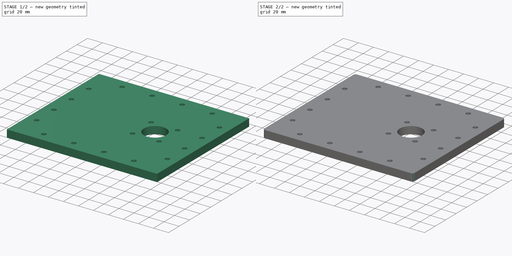
[diagram: build sequence overview — one tinted view per stage of 2, left to right]
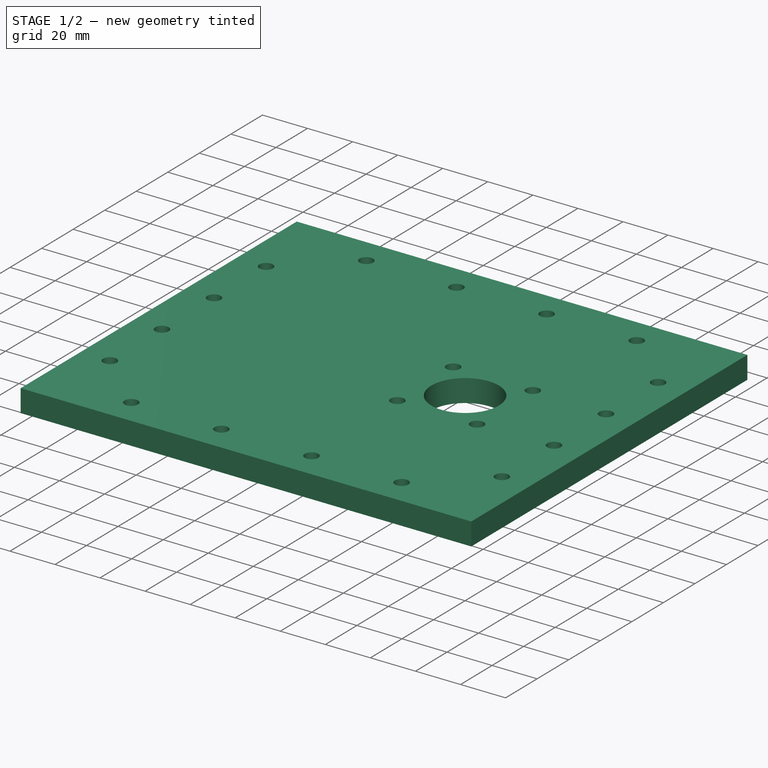
[diagram: stage 1 of 2 — iso view after this stage's code; geometry added in this stage tinted green]
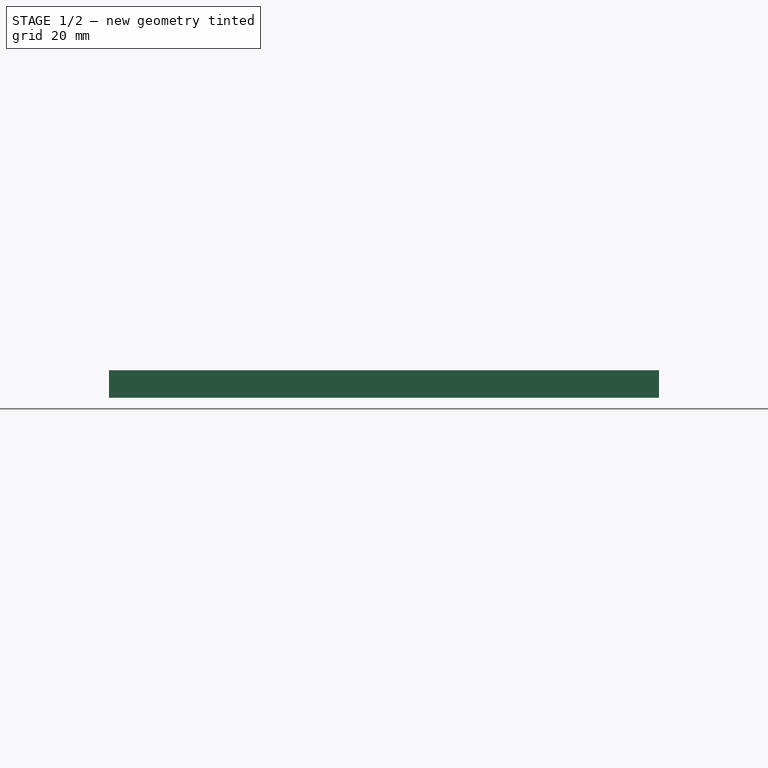
[diagram: stage 1 of 2 — front view after this stage's code; geometry added in this stage tinted green]
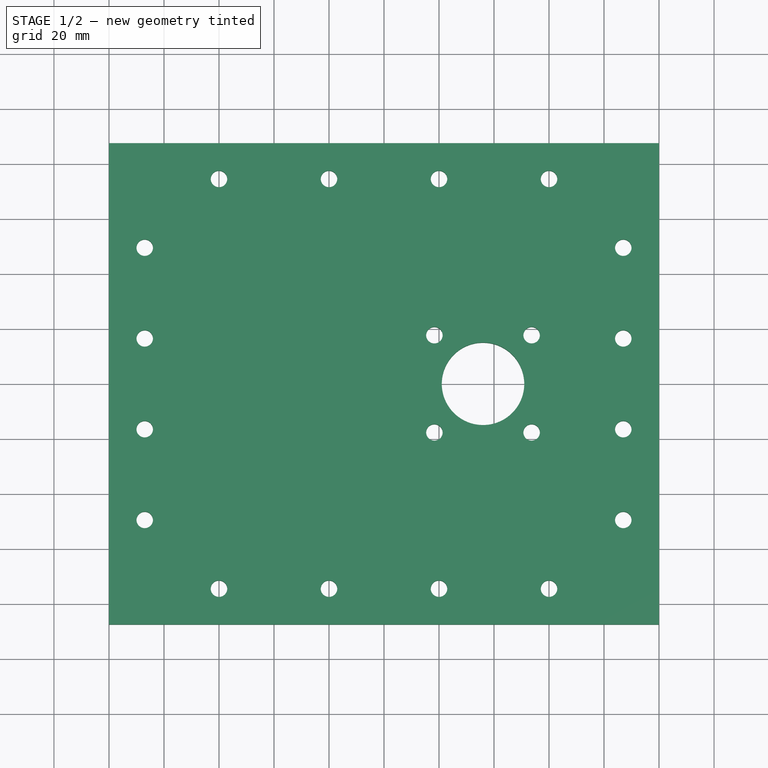
[diagram: stage 1 of 2 — top view after this stage's code; geometry added in this stage tinted green]
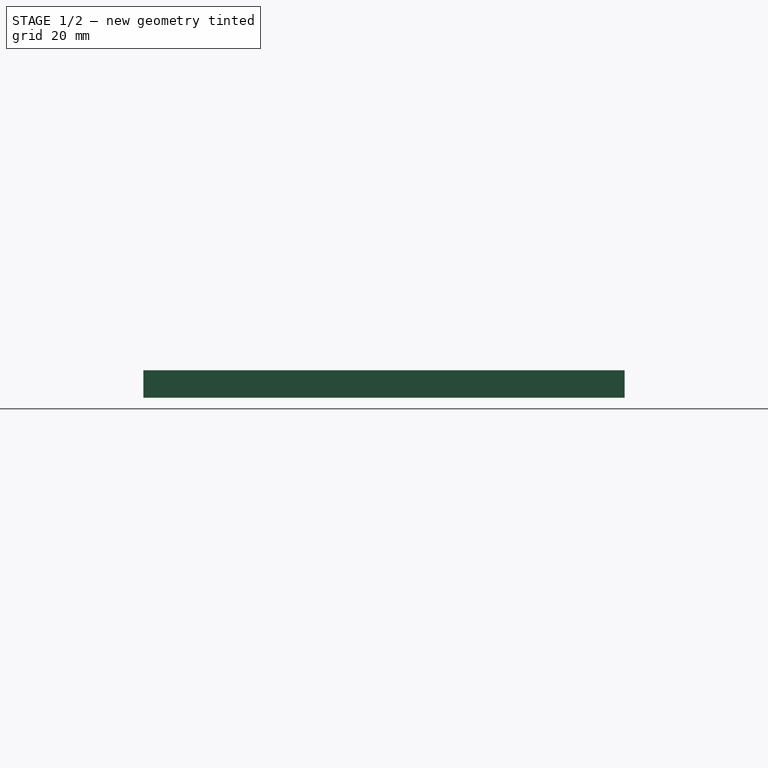
[diagram: stage 1 of 2 — right view after this stage's code; geometry added in this stage tinted green]
FCSTD DOCUMENT  (FreeCAD 0.19R24276 (Git))
Label: bldc_holder_p1_175x200x10_otv_d30_d6
License: All rights reserved
LicenseURL: http://en.wikipedia.org/wiki/All_rights_reserved
objects: Sketcher::SketchObject×1, PartDesign::Pad×1, PartDesign::Fillet×1, PartDesign::Body×1
note: 6 computed .brp shape members not serialized (recipe doc carries the construction recipe); baked Part::Feature solids carry a one-line shape summary decoded from their .brp

FEATURE [Sketcher::SketchObject] Sketch
  FullyConstrained = false
  MapMode = 5
  Support = -> [XY_Plane]
  sketch-geometry (50):
    g0: LineSegment StartX=0 StartY=0 StartZ=0 EndX=200 EndY=0 EndZ=0
    g1: LineSegment StartX=200 StartY=0 StartZ=0 EndX=200 EndY=200 EndZ=0
    g2: LineSegment StartX=200 StartY=200 StartZ=0 EndX=0 EndY=200 EndZ=0
    g3: Circle CenterX=136 CenterY=100 CenterZ=0 NormalX=0 NormalY=0 NormalZ=1 AngleXU=0 Radius=15
    g4: Circle CenterX=136 CenterY=100 CenterZ=0 NormalX=0 NormalY=0 NormalZ=1 AngleXU=0 Radius=62.5
    g5: LineSegment StartX=153.678 StartY=117.678 StartZ=0 EndX=118.322 EndY=117.678 EndZ=0
    g6: LineSegment StartX=118.322 StartY=117.678 StartZ=0 EndX=118.322 EndY=82.3223 EndZ=0
    g7: LineSegment StartX=118.322 StartY=82.3223 StartZ=0 EndX=153.678 EndY=82.3223 EndZ=0
    g8: LineSegment StartX=153.678 StartY=82.3223 StartZ=0 EndX=153.678 EndY=117.678 EndZ=0
    g9: Circle CenterX=136 CenterY=100 CenterZ=0 NormalX=0 NormalY=0 NormalZ=1 AngleXU=0 Radius=25
    g10: Circle CenterX=118.322 CenterY=117.678 CenterZ=0 NormalX=0 NormalY=0 NormalZ=1 AngleXU=0 Radius=3
    g11: Circle CenterX=153.678 CenterY=117.678 CenterZ=0 NormalX=0 NormalY=0 NormalZ=1 AngleXU=0 Radius=3
    g12: Circle CenterX=118.322 CenterY=82.3223 CenterZ=0 NormalX=0 NormalY=0 NormalZ=1 AngleXU=0 Radius=3
    g13: Circle CenterX=153.678 CenterY=82.3223 CenterZ=0 NormalX=0 NormalY=0 NormalZ=1 AngleXU=0 Radius=3
    g14: Circle CenterX=40 CenterY=25.5 CenterZ=0 NormalX=0 NormalY=0 NormalZ=1 AngleXU=0 Radius=3
    g15: Circle CenterX=160 CenterY=25.5 CenterZ=0 NormalX=0 NormalY=0 NormalZ=1 AngleXU=0 Radius=3
    g16: Circle CenterX=80 CenterY=25.5 CenterZ=0 NormalX=0 NormalY=0 NormalZ=1 AngleXU=0 Radius=3
    g17: Circle CenterX=120 CenterY=25.5 CenterZ=0 NormalX=0 NormalY=0 NormalZ=1 AngleXU=0 Radius=3
    g18: LineSegment StartX=136 StartY=100 StartZ=0 EndX=13 EndY=100 EndZ=0
    g19: Circle CenterX=40 CenterY=174.5 CenterZ=0 NormalX=0 NormalY=0 NormalZ=1 AngleXU=0 Radius=3
    g20: Circle CenterX=80 CenterY=174.5 CenterZ=0 NormalX=0 NormalY=0 NormalZ=1 AngleXU=0 Radius=3
    g21: Circle CenterX=120 CenterY=174.5 CenterZ=0 NormalX=0 NormalY=0 NormalZ=1 AngleXU=0 Radius=3
    g22: Circle CenterX=160 CenterY=174.5 CenterZ=0 NormalX=0 NormalY=0 NormalZ=1 AngleXU=0 Radius=3
    g23: Circle CenterX=13 CenterY=149.5 CenterZ=0 NormalX=0 NormalY=0 NormalZ=1 AngleXU=0 Radius=3
    g24: Circle CenterX=13 CenterY=116.5 CenterZ=0 NormalX=0 NormalY=0 NormalZ=1 AngleXU=0 Radius=3
    g25: Circle CenterX=13 CenterY=83.5 CenterZ=0 NormalX=0 NormalY=0 NormalZ=1 AngleXU=0 Radius=3
    g26: Circle CenterX=13 CenterY=50.5 CenterZ=0 NormalX=0 NormalY=0 NormalZ=1 AngleXU=0 Radius=3
    g27: LineSegment StartX=13 StartY=100 StartZ=0 EndX=13 EndY=145.429 EndZ=0
    g28: Circle CenterX=187 CenterY=149.5 CenterZ=0 NormalX=0 NormalY=0 NormalZ=1 AngleXU=0 Radius=3
    g29: Circle CenterX=187 CenterY=116.5 CenterZ=0 NormalX=0 NormalY=0 NormalZ=1 AngleXU=0 Radius=3
    g30: Circle CenterX=187 CenterY=83.5 CenterZ=0 NormalX=0 NormalY=0 NormalZ=1 AngleXU=0 Radius=3
    g31: Circle CenterX=187 CenterY=50.5 CenterZ=0 NormalX=0 NormalY=0 NormalZ=1 AngleXU=0 Radius=3
    g32: LineSegment StartX=0 StartY=187.5 StartZ=0 EndX=200 EndY=187.5 EndZ=0
    g33: LineSegment StartX=200 StartY=187.5 StartZ=0 EndX=200 EndY=12.5 EndZ=0
    g34: LineSegment StartX=200 StartY=12.5 StartZ=0 EndX=0 EndY=12.5 EndZ=0
    g35: LineSegment StartX=0 StartY=12.5 StartZ=0 EndX=200 EndY=12.5 EndZ=0
    g36: LineSegment StartX=200 StartY=12.5 StartZ=0 EndX=200 EndY=187.5 EndZ=0
    g37: LineSegment StartX=200 StartY=187.5 StartZ=0 EndX=0 EndY=187.5 EndZ=0
    g38: LineSegment StartX=0 StartY=12.5 StartZ=0 EndX=0 EndY=187.5 EndZ=0
    g39: Circle CenterX=136 CenterY=100 CenterZ=0 NormalX=0 NormalY=0 NormalZ=1 AngleXU=0 Radius=60
    g40: LineSegment StartX=193.924 StartY=177.5 StartZ=0 EndX=6.95574 EndY=177.5 EndZ=0
    g41: LineSegment StartX=6.95574 StartY=177.5 StartZ=0 EndX=6.95574 EndY=187.5 EndZ=0
    g42: LineSegment StartX=6.95574 StartY=187.5 StartZ=0 EndX=193.924 EndY=187.5 EndZ=0
    g43: LineSegment StartX=193.924 StartY=187.5 StartZ=0 EndX=193.924 EndY=177.5 EndZ=0
    g44: LineSegment StartX=191.131 StartY=161.5 StartZ=0 EndX=6.35097 EndY=161.5 EndZ=0
    g45: LineSegment StartX=6.35097 StartY=161.5 StartZ=0 EndX=6.35097 EndY=171.5 EndZ=0
    g46: LineSegment StartX=6.35097 StartY=171.5 StartZ=0 EndX=191.131 EndY=171.5 EndZ=0
    g47: LineSegment StartX=191.131 StartY=171.5 StartZ=0 EndX=191.131 EndY=161.5 EndZ=0
    g48: LineSegment StartX=136 StartY=160 StartZ=0 EndX=192.356 EndY=160 EndZ=0
    g49: LineSegment StartX=136 StartY=100 StartZ=0 EndX=136 EndY=160 EndZ=0
  constraints (133):
    c: Coincident(g0,g1)
    c: Coincident(g1,g2)
    c: Horizontal(g0)
    c: Horizontal(g2)
    c: Vertical(g1)
    c: Coincident(g0,g-1)
    c: Equal(g1,g2)
    c: DistanceX(g0,g0) = 200
    c: Coincident(g4,g3)
    c: Diameter(g4) = 125
    c: DistanceX(g3,g1) = 64
    c: DistanceY(g0,g3) = 100
    c: Diameter(g3) = 30
    c: Coincident(g5,g6)
    c: Coincident(g6,g7)
    c: Coincident(g7,g8)
    c: Coincident(g8,g5)
    c: Equal(g5,g6)
    c: Equal(g5,g7)
    c: Equal(g5,g8)
    c: PointOnObject(g5,g9)
    c: PointOnObject(g6,g9)
    c: PointOnObject(g7,g9)
    c: PointOnObject(g8,g9)
    c: Coincident(g9,g3)
    c: Horizontal(g5)
    c: Diameter(g9) = 50
    c: Coincident(g10,g5)
    c: Coincident(g11,g5)
    c: Coincident(g12,g6)
    c: Coincident(g13,g7)
    c: Diameter(g10) = 6
    c: Equal(g10,g12)
    c: Equal(g10,g11)
    c: Equal(g10,g13)
    c: Horizontal(g14,g16)
    c: Horizontal(g16,g17)
    c: Horizontal(g17,g15)
    c: Equal(g14,g16)
    c: Equal(g14,g15)
    c: DistanceX(g14,g16) = 40
    c: DistanceX(g16,g17) = 40
    c: DistanceX(g17,g15) = 40
    c: DistanceX(g0,g14) = 40
    c: Horizontal(g18)
    c: Diameter(g19) = 6
    c: Equal(g19,g20)
    c: Equal(g19,g21)
    c: Equal(g19,g22)
    c: Vertical(g19,g14)
    c: Vertical(g20,g16)
    c: Vertical(g21,g17)
    c: Vertical(g22,g15)
    c: Horizontal(g19,g20)
    c: Horizontal(g21,g22)
    c: Horizontal(g20,g21)
    c: Vertical(g26,g25)
    c: Vertical(g25,g24)
    c: Vertical(g24,g23)
    c: Equal(g23,g24)
    c: Equal(g24,g25)
    c: Equal(g25,g26)
    c: Equal(g26,g19)
    c: DistanceY(g24,g23) = 33
    c: DistanceY(g26,g25) = 33
    c: DistanceX(g0,g26) = 13
    c: Coincident(g27,g18)
    c: Vertical(g27)
    c: Equal(g28,g29)
    c: Equal(g29,g30)
    c: Equal(g30,g31)
    c: Horizontal(g28,g23)
    c: Horizontal(g24,g29)
    c: Horizontal(g25,g30)
    c: Horizontal(g26,g31)
    c: Vertical(g31,g30)
    c: Vertical(g30,g29)
    c: Vertical(g29,g28)
    c: DistanceX(g31,g0) = 13
    c: Equal(g28,g22)
    c: Equal(g16,g17)
    c: Equal(g15,g26)
    c: Coincident(g32,g33)
    c: Coincident(g33,g34)
    c: Horizontal(g32)
    c: Horizontal(g34)
    c: Vertical(g33)
    c: Vertical(g33,g0)
    c: Vertical(g0,g34)
    c: DistanceY(g0,g34) = 12.5
    c: DistanceY(g32,g2) = 12.5
    c: DistanceY(g19,g32) = 13
    c: DistanceY(g34,g14) = 13
    c: Coincident(g35,g34)
    c: Coincident(g36,g35)
    c: Coincident(g36,g32)
    c: Coincident(g37,g36)
    c: Coincident(g37,g32)
    c: Coincident(g35,g33)
    c: Coincident(g18,g3)
    c: Symmetric(g25,g24,g18)
    c: DistanceY(g25,g24) = 33
    c: DistanceY(g35,g36) = 175
    c: Vertical(g37,g2)
    c: Coincident(g38,g35)
    c: Coincident(g38,g37)
    c: Coincident(g39,g3)
    c: Diameter(g39) = 120
    c: Coincident(g40,g41)
    c: Coincident(g41,g42)
    c: Coincident(g42,g43)
    c: Coincident(g43,g40)
    c: Horizontal(g40)
    c: Horizontal(g42)
    c: Vertical(g41)
    c: Vertical(g43)
    c: Coincident(g44,g45)
    c: Coincident(g45,g46)
    c: Coincident(g46,g47)
    c: Coincident(g47,g44)
    c: Horizontal(g44)
    c: Horizontal(g46)
    c: Vertical(g45)
    c: Vertical(g47)
    c: DistanceY(g43,g43) = 10
    c: DistanceY(g47,g47) = 10
    c: Horizontal(g42,g36)
    c: DistanceY(g46,g40) = 6
    c: PointOnObject(g48,g39)
    c: Horizontal(g48)
    c: Coincident(g49,g3)
    c: Coincident(g49,g48)
    c: Vertical(g49)
FEATURE [PartDesign::Pad] Pad
  Direction = (1,1,1)
  Length = 10
  Length2 = 100
  Profile = -> Sketch
  Type = 0
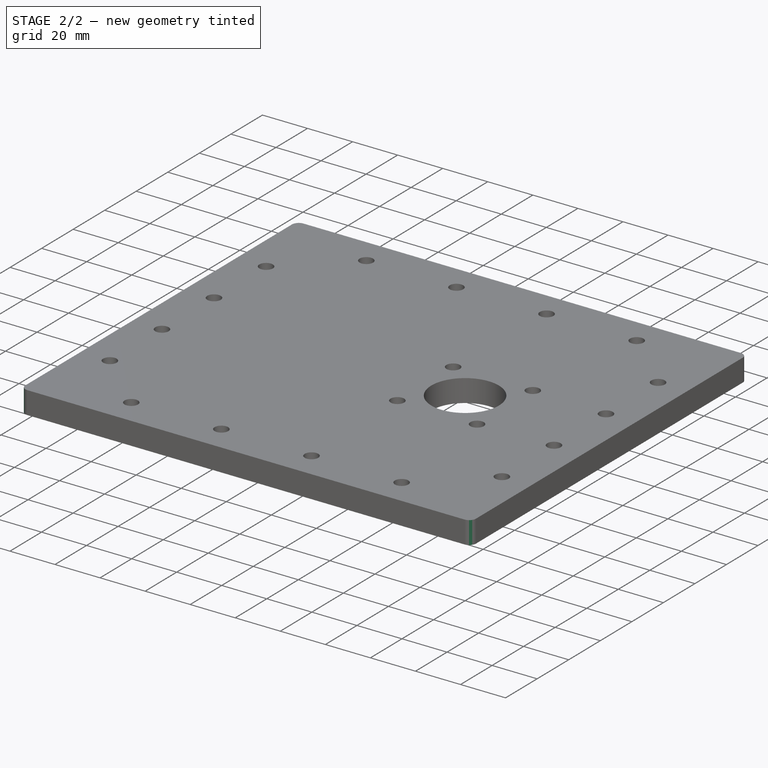
[diagram: stage 2 of 2 — iso view after this stage's code; geometry added in this stage tinted green]
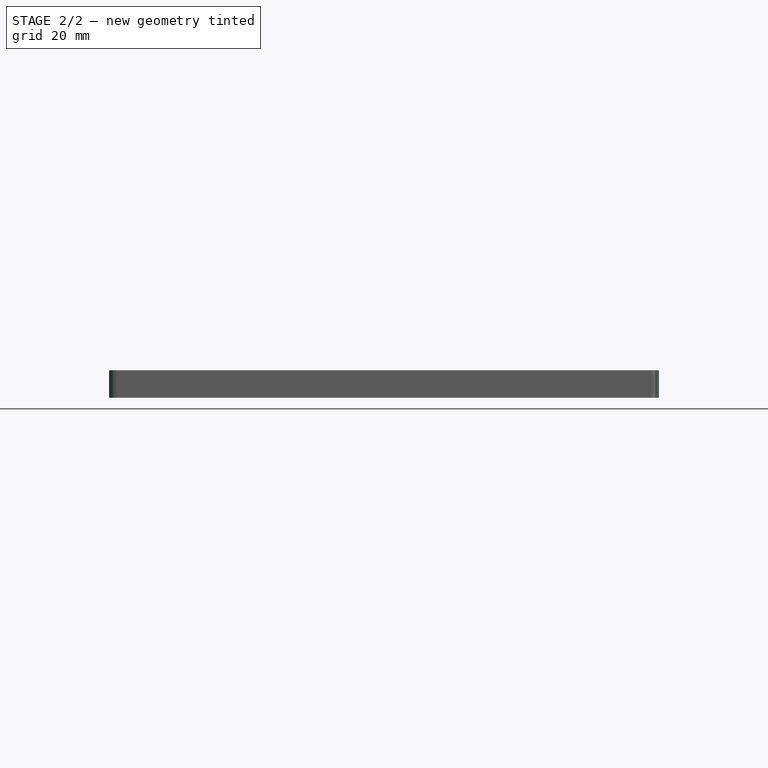
[diagram: stage 2 of 2 — front view after this stage's code; geometry added in this stage tinted green]
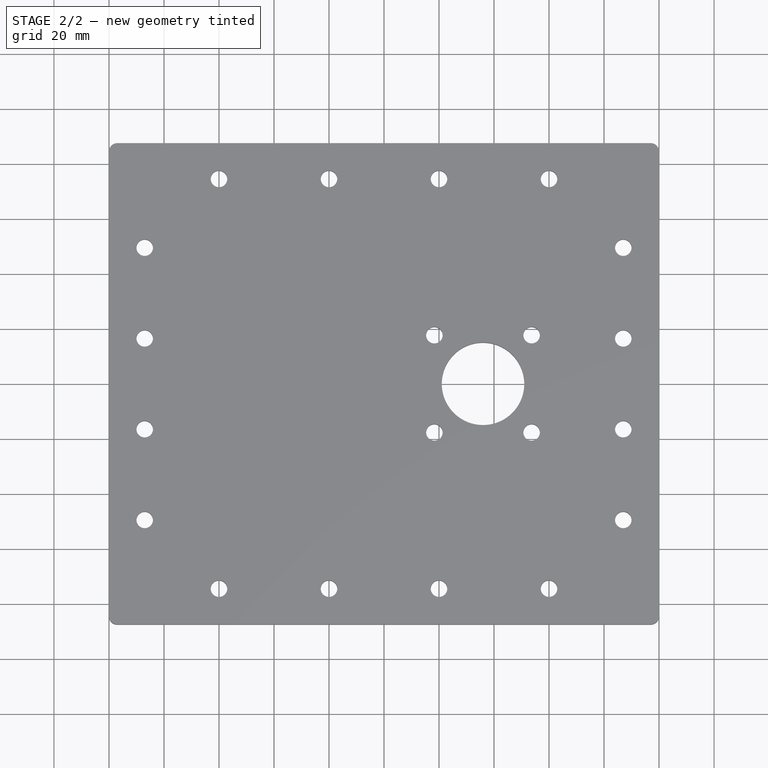
[diagram: stage 2 of 2 — top view after this stage's code; geometry added in this stage tinted green]
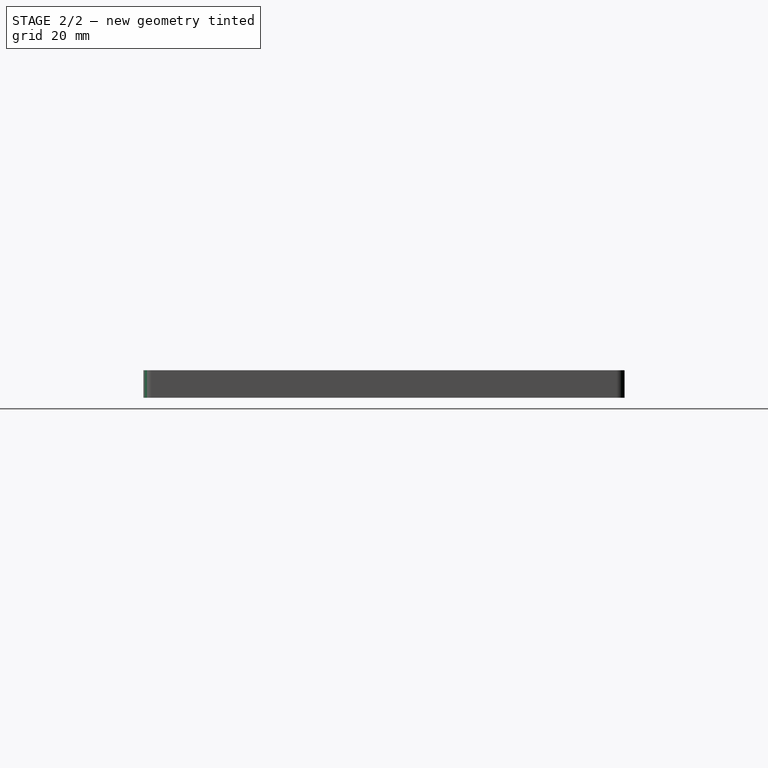
[diagram: stage 2 of 2 — right view after this stage's code; geometry added in this stage tinted green]
FEATURE [PartDesign::Fillet] Fillet
  Base = -> Pad [Edge1,Edge2,Edge8,Edge5]
  BaseFeature = -> Pad
  Radius = 3
  SupportTransform = false
FEATURE [PartDesign::Body] Body
  Group = -> [Sketch,Pad,Fillet]
  Origin = -> Origin
  Tip = -> Fillet
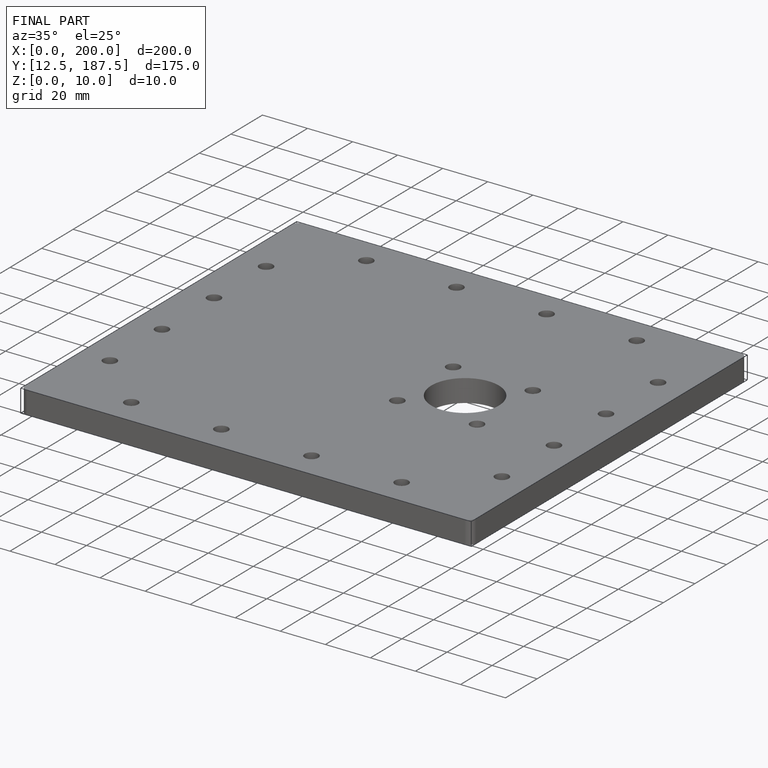
[diagram: finished part — iso view with bounding-box wireframe]
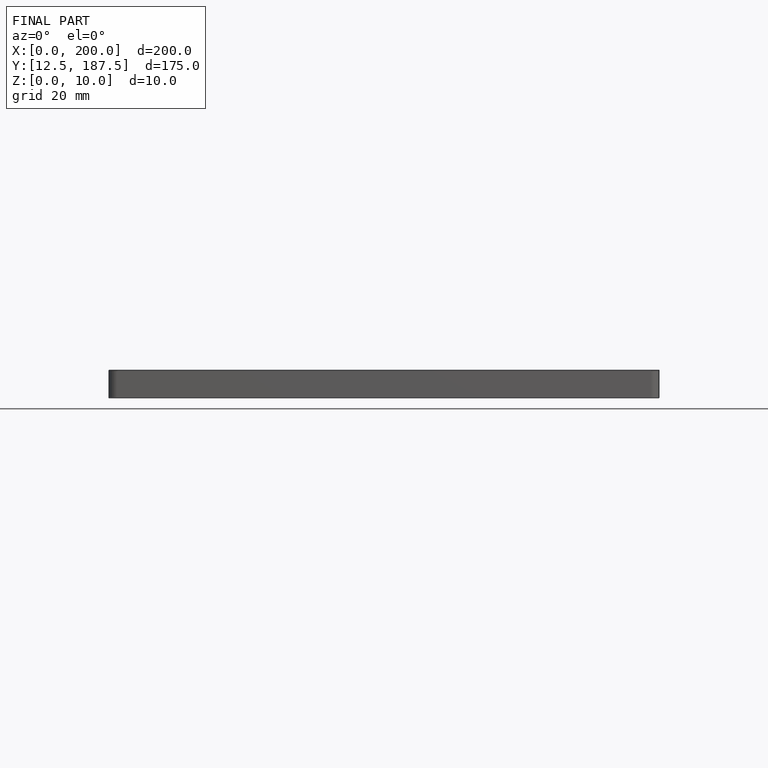
[diagram: finished part — front view with bounding-box wireframe]
